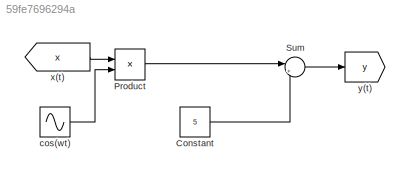
MODEL slx_59fe7696294a
KIND model
CONFIG AbsTol = auto
CONFIG EnableMultiTasking = off
CONFIG FixedStep = auto
CONFIG MaxStep = auto
CONFIG MinStep = auto
CONFIG RelTol = 1e-3
CONFIG SampleTimeConstraint = Unconstrained
CONFIG Solver = VariableStepAuto
CONFIG SolverName = VariableStepAuto
CONFIG StartTime = 0.0
CONFIG StopTime = 10.0
BLOCK [Constant] Constant
  Value = 5
BLOCK [Product] Product
  InputSameDT = off
  OutDataTypeStr = Inherit: Inherit via internal rule
  Ports = [2, 1]
  RndMeth = Floor
  SaturateOnIntegerOverflow = off
BLOCK [Sum] Sum
  IconShape = round
  InputSameDT = off
  Inputs = |++
  OutDataTypeStr = Inherit: Inherit via internal rule
  Ports = [2, 1]
  SaturateOnIntegerOverflow = off
BLOCK [Sin] cos(wt)
  Ports = [0, 1]
  SampleTime = 0
BLOCK [From] x(t)
  GotoTag = x
BLOCK [Goto] y(t)
  GotoTag = y
LINE Constant:1 -> Sum:2
LINE Product:1 -> Sum:1
LINE Sum:1 -> y(t):1
LINE cos(wt):1 -> Product:2
LINE x(t):1 -> Product:1
